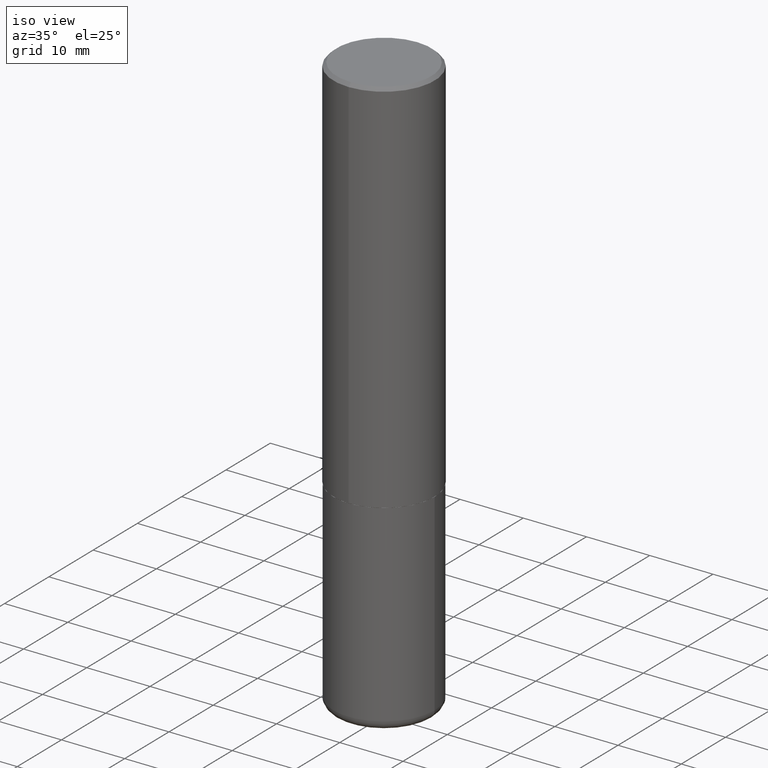
[diagram: clean part render]
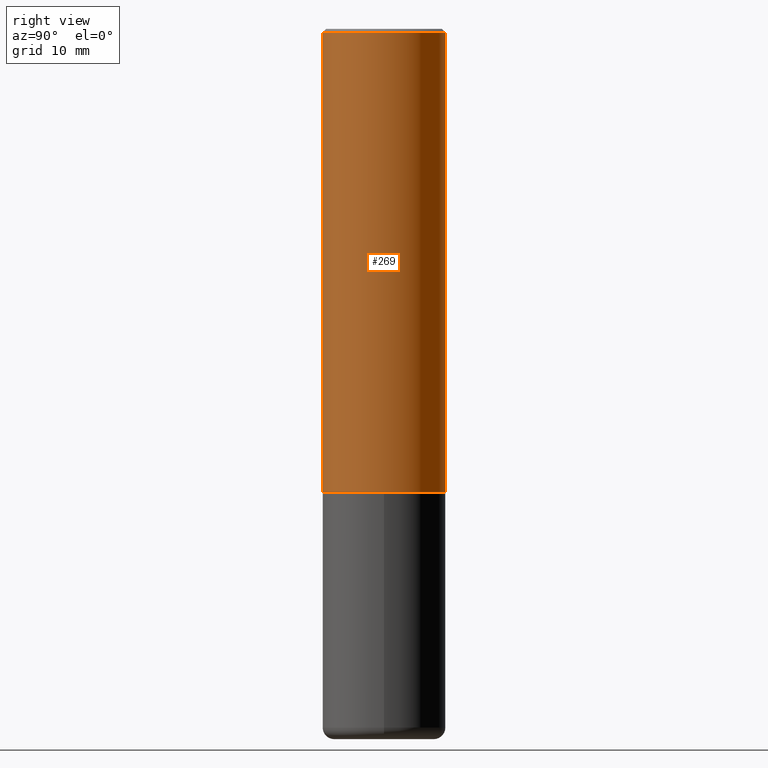
[diagram: tour spotlight — one face highlighted and labeled with its STEP entity id]
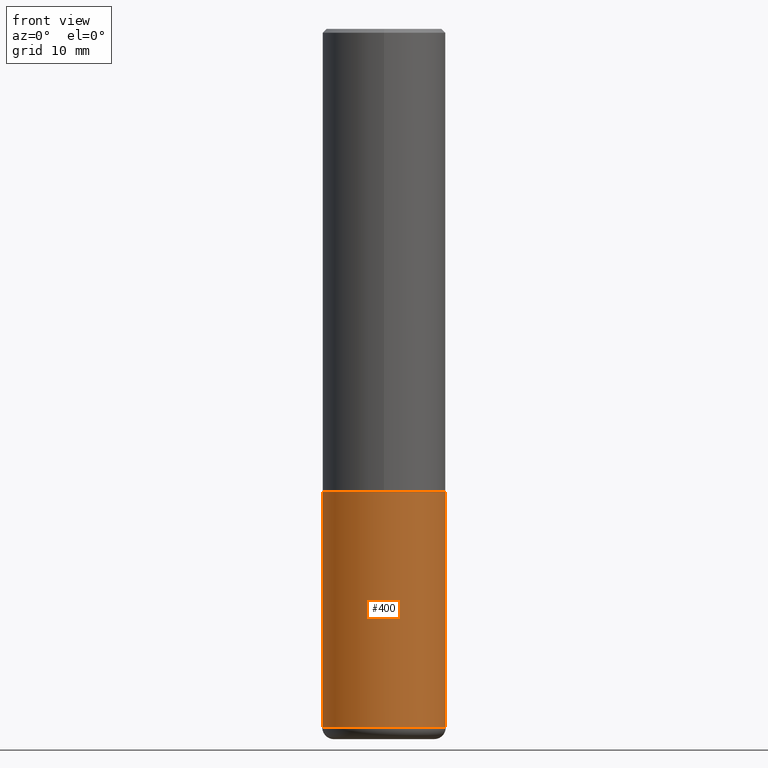
[diagram: tour spotlight — one face highlighted and labeled with its STEP entity id]
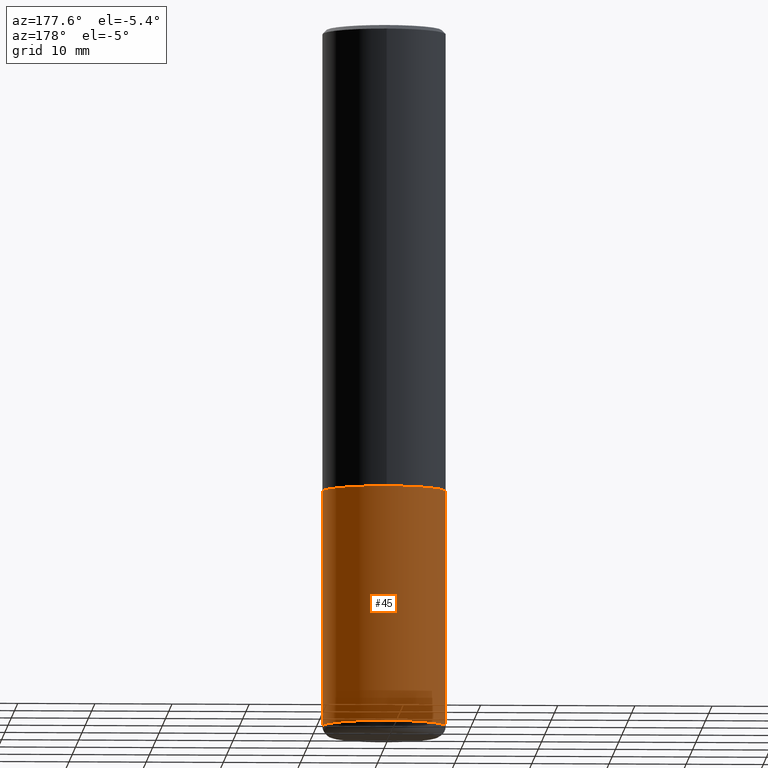
[diagram: tour spotlight — one face highlighted and labeled with its STEP entity id]
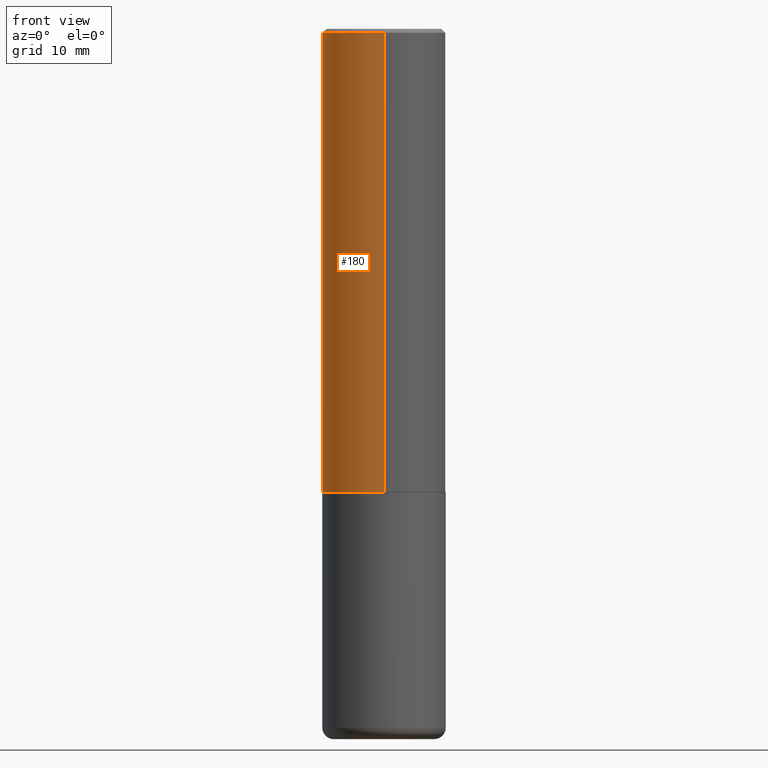
[diagram: tour spotlight — one face highlighted and labeled with its STEP entity id]
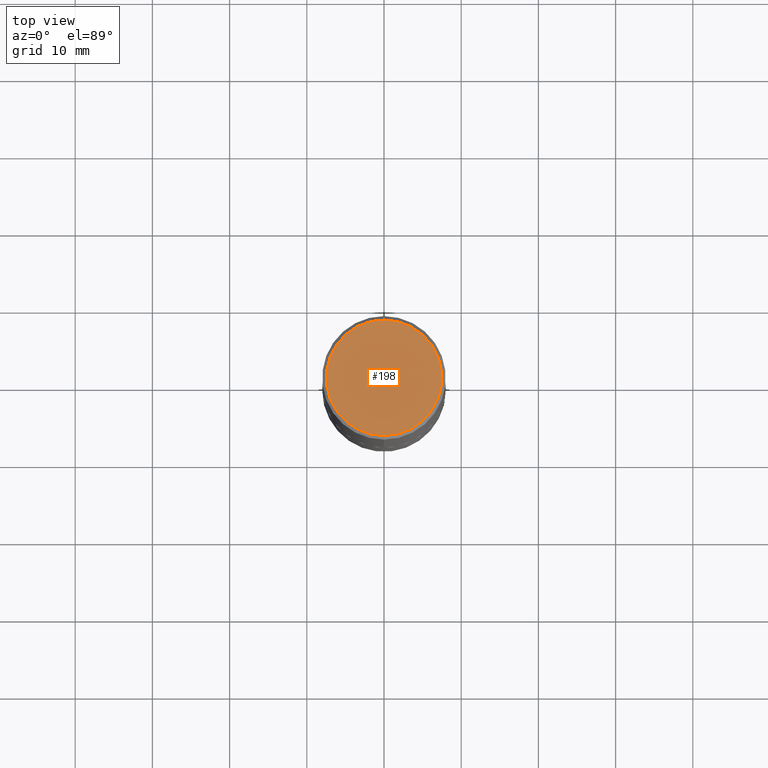
[diagram: tour spotlight — one face highlighted and labeled with its STEP entity id]
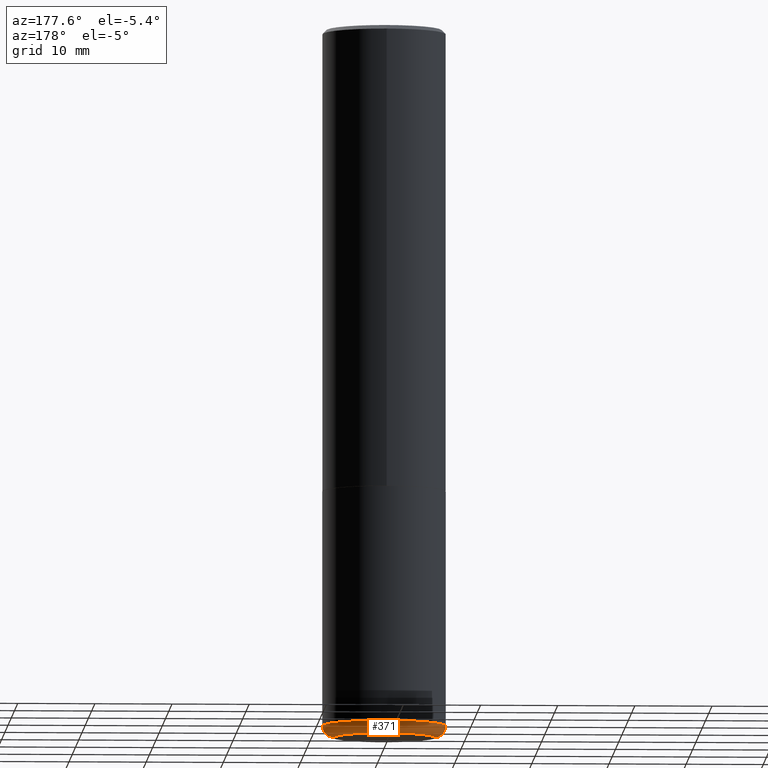
[diagram: tour spotlight — one face highlighted and labeled with its STEP entity id]
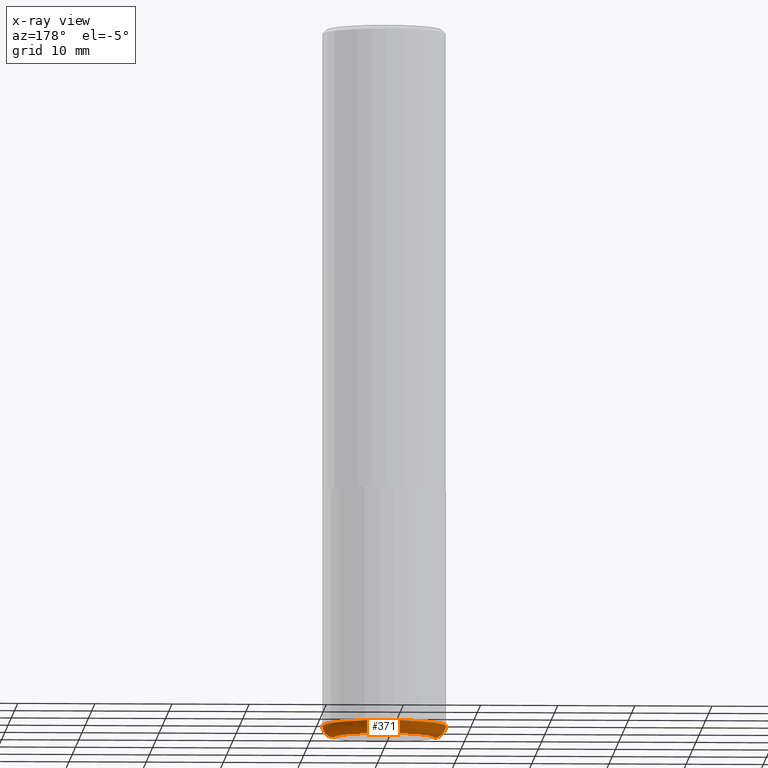
[diagram: x-ray of the same camera — body ghosted, this tour face saturated]
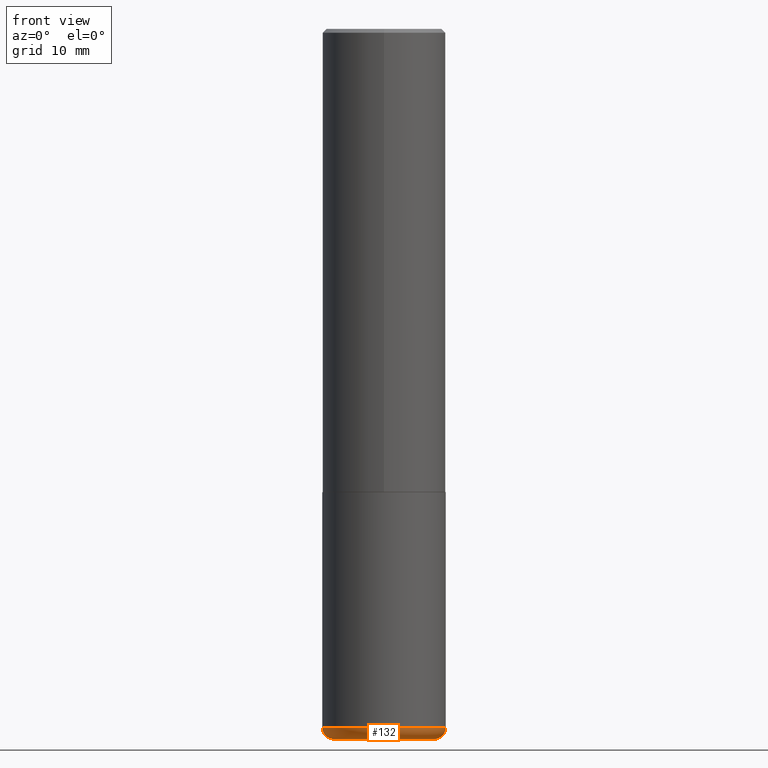
[diagram: tour spotlight — one face highlighted and labeled with its STEP entity id]
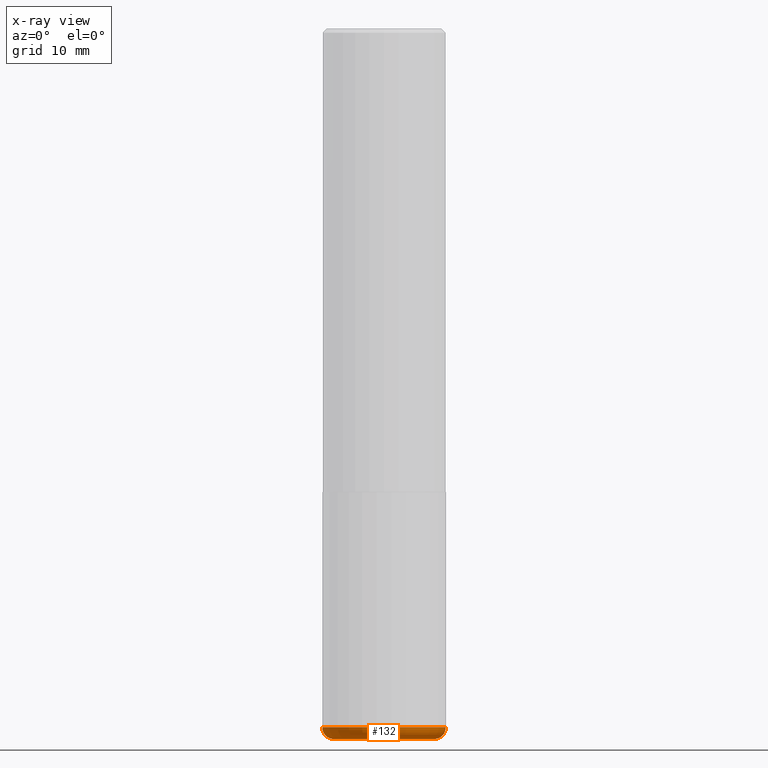
[diagram: x-ray of the same camera — body ghosted, this tour face saturated]
A machine part: a face-by-face anatomy tour. The part has 14 B-rep faces; the first image is the clean iso view, then the 7 largest visible faces are spotlighted one at a time (largest first), each with its STEP entity span.

Face 1 — right view, entity #269. In plain terms, the highlighted cylindrical surface (partial cylindrical patch) has radius 7.9997 mm, axis along (-0, 0, 1).
Definition (entity closure, byte-faithful):
#7 = VERTEX_POINT ( 'NONE', #410 ) ;
#24 = LINE ( 'NONE', #258, #54 ) ;
#30 = VERTEX_POINT ( 'NONE', #303 ) ;
#43 = ORIENTED_EDGE ( 'NONE', *, *, #283, .F. ) ;
#54 = VECTOR ( 'NONE', #59, 39.37007874015748143 ) ;
#59 = DIRECTION ( 'NONE',  ( -2.446939916028603526E-29, 3.489374625816928669E-15, 1.000000000000000000 ) ) ;
#66 = CIRCLE ( 'NONE', #157, 0.3149500000000002853 ) ;
#77 = EDGE_CURVE ( 'NONE', #161, #30, #334, .T. ) ;
#84 = CARTESIAN_POINT ( 'NONE',  ( 2.237854346276435985E-15, 0.3149500000000001743, -1.098978538401042082E-15 ) ) ;
#88 = EDGE_CURVE ( 'NONE', #345, #161, #66, .T. ) ;
#106 = CARTESIAN_POINT ( 'NONE',  ( -2.199284095337233467E-15, -0.3149500000000085564, -2.361199999999998411 ) ) ;
#110 = DIRECTION ( 'NONE',  ( -6.982962677686265922E-15, -1.000000000000000000, 3.469564049740290009E-15 ) ) ;
#112 = CIRCLE ( 'NONE', #346, 0.3149500000000000632 ) ;
#134 = EDGE_LOOP ( 'NONE', ( #381, #290, #43, #171 ) ) ;
#157 = AXIS2_PLACEMENT_3D ( 'NONE', #279, #403, #110 ) ;
#161 = VERTEX_POINT ( 'NONE', #207 ) ;
#163 = VECTOR ( 'NONE', #248, 39.37007874015748143 ) ;
#171 = ORIENTED_EDGE ( 'NONE', *, *, #261, .F. ) ;
#192 = DIRECTION ( 'NONE',  ( -2.446939916028603526E-29, 3.489374625816928275E-15, 1.000000000000000000 ) ) ;
#207 = CARTESIAN_POINT ( 'NONE',  ( 2.237854346276465567E-15, 0.3149499999999920141, -2.361200000000000632 ) ) ;
#227 = CARTESIAN_POINT ( 'NONE',  ( 0.000000000000000000, 0.000000000000000000, 0.000000000000000000 ) ) ;
#248 = DIRECTION ( 'NONE',  ( -2.446939916028603526E-29, 3.489374625816928669E-15, 1.000000000000000000 ) ) ;
#258 = CARTESIAN_POINT ( 'NONE',  ( -2.199284095337290265E-15, -0.3149500000000001743, 1.098978538401042082E-15 ) ) ;
#261 = EDGE_CURVE ( 'NONE', #345, #7, #24, .T. ) ;
#269 = ADVANCED_FACE ( 'NONE', ( #343 ), #280, .T. ) ;
#279 = CARTESIAN_POINT ( 'NONE',  ( 5.777714529726738236E-29, -8.239111366478930822E-15, -2.361199999999999743 ) ) ;
#280 = CYLINDRICAL_SURFACE ( 'NONE', #332, 0.3149500000000001743 ) ;
#282 = CARTESIAN_POINT ( 'NONE',  ( 4.893879832057223376E-31, -6.978749251633880462E-17, -0.02000000000000006981 ) ) ;
#283 = EDGE_CURVE ( 'NONE', #7, #30, #112, .T. ) ;
#290 = ORIENTED_EDGE ( 'NONE', *, *, #77, .T. ) ;
#303 = CARTESIAN_POINT ( 'NONE',  ( 2.199284095337290265E-15, 0.3149500000000000077, -0.02000000000000116615 ) ) ;
#332 = AXIS2_PLACEMENT_3D ( 'NONE', #227, #192, #386 ) ;
#334 = LINE ( 'NONE', #84, #163 ) ;
#343 = FACE_OUTER_BOUND ( 'NONE', #134, .T. ) ;
#345 = VERTEX_POINT ( 'NONE', #106 ) ;
#346 = AXIS2_PLACEMENT_3D ( 'NONE', #282, #379, #347 ) ;
#347 = DIRECTION ( 'NONE',  ( -6.982962677686265922E-15, -1.000000000000000000, 3.483117034309590343E-15 ) ) ;
#379 = DIRECTION ( 'NONE',  ( -2.446939916028603526E-29, 3.489374625816928275E-15, 1.000000000000000000 ) ) ;
#381 = ORIENTED_EDGE ( 'NONE', *, *, #88, .T. ) ;
#386 = DIRECTION ( 'NONE',  ( -6.982962677686264344E-15, -1.000000000000000000, 3.489374625816927880E-15 ) ) ;
#403 = DIRECTION ( 'NONE',  ( -2.446939916028603526E-29, 3.489374625816928275E-15, 1.000000000000000000 ) ) ;
#410 = CARTESIAN_POINT ( 'NONE',  ( -2.160713844398143757E-15, -0.3149500000000001743, -0.01999999999999896999 ) ) ;

Face 2 — front view, entity #400. In plain terms, the highlighted cylindrical surface (partial cylindrical patch) has radius 7.9997 mm, axis along (-0, 0, 1).
Definition (entity closure, byte-faithful):
#9 = AXIS2_PLACEMENT_3D ( 'NONE', #99, #391, #240 ) ;
#11 = ORIENTED_EDGE ( 'NONE', *, *, #148, .T. ) ;
#13 = VERTEX_POINT ( 'NONE', #49 ) ;
#49 = CARTESIAN_POINT ( 'NONE',  ( -0.3149500000000000077, -8.105833694113324624E-15, -2.362199999999999633 ) ) ;
#50 = CARTESIAN_POINT ( 'NONE',  ( 0.3149500000000000077, -1.044686131395256792E-14, -2.362199999999999633 ) ) ;
#53 = CARTESIAN_POINT ( 'NONE',  ( 0.3149500000000000077, -2.199284095337289871E-15, 1.535751875536930130E-29 ) ) ;
#67 = ORIENTED_EDGE ( 'NONE', *, *, #186, .T. ) ;
#72 = CIRCLE ( 'NONE', #306, 0.3149500000000000077 ) ;
#87 = DIRECTION ( 'NONE',  ( -2.445468806185136597E-29, 3.491481338843145583E-15, 1.000000000000000000 ) ) ;
#91 = ORIENTED_EDGE ( 'NONE', *, *, #340, .F. ) ;
#98 = VERTEX_POINT ( 'NONE', #50 ) ;
#99 = CARTESIAN_POINT ( 'NONE',  ( 0.000000000000000000, 0.000000000000000000, 0.000000000000000000 ) ) ;
#102 = CARTESIAN_POINT ( 'NONE',  ( 0.3149500000000000077, -1.463908295750153462E-14, -3.562899999999999956 ) ) ;
#103 = LINE ( 'NONE', #137, #129 ) ;
#129 = VECTOR ( 'NONE', #357, 39.37007874015748143 ) ;
#137 = CARTESIAN_POINT ( 'NONE',  ( -0.3149500000000000077, 2.237854346276435590E-15, -1.549218606675782676E-29 ) ) ;
#141 = FACE_OUTER_BOUND ( 'NONE', #363, .T. ) ;
#148 = EDGE_CURVE ( 'NONE', #339, #98, #219, .T. ) ;
#149 = CIRCLE ( 'NONE', #313, 0.3149500000000000077 ) ;
#165 = CYLINDRICAL_SURFACE ( 'NONE', #9, 0.3149500000000000077 ) ;
#186 = EDGE_CURVE ( 'NONE', #318, #339, #72, .T. ) ;
#217 = VECTOR ( 'NONE', #376, 39.37007874015748143 ) ;
#219 = LINE ( 'NONE', #53, #217 ) ;
#220 = DIRECTION ( 'NONE',  ( 1.000000000000000000, -6.982962677686266711E-15, 0.000000000000000000 ) ) ;
#229 = DIRECTION ( 'NONE',  ( 1.000000000000000000, -6.982962677686269866E-15, 0.000000000000000000 ) ) ;
#231 = CARTESIAN_POINT ( 'NONE',  ( 8.712960809557023143E-29, -1.243979886216424317E-14, -3.562899999999999956 ) ) ;
#240 = DIRECTION ( 'NONE',  ( 1.000000000000000000, -6.982962677686266711E-15, 4.876176775795936353E-29 ) ) ;
#250 = CARTESIAN_POINT ( 'NONE',  ( -0.3149500000000000077, -1.020194451588780718E-14, -3.562899999999999956 ) ) ;
#286 = ORIENTED_EDGE ( 'NONE', *, *, #323, .F. ) ;
#306 = AXIS2_PLACEMENT_3D ( 'NONE', #231, #352, #229 ) ;
#311 = CARTESIAN_POINT ( 'NONE',  ( 5.776686413970529753E-29, -8.247577218615278049E-15, -2.362199999999999633 ) ) ;
#313 = AXIS2_PLACEMENT_3D ( 'NONE', #311, #87, #220 ) ;
#318 = VERTEX_POINT ( 'NONE', #250 ) ;
#323 = EDGE_CURVE ( 'NONE', #13, #98, #149, .T. ) ;
#339 = VERTEX_POINT ( 'NONE', #102 ) ;
#340 = EDGE_CURVE ( 'NONE', #318, #13, #103, .T. ) ;
#352 = DIRECTION ( 'NONE',  ( -2.445468806185136597E-29, 3.491481338843145583E-15, 1.000000000000000000 ) ) ;
#357 = DIRECTION ( 'NONE',  ( -2.445468806185136877E-29, 3.491481338843145188E-15, 1.000000000000000000 ) ) ;
#363 = EDGE_LOOP ( 'NONE', ( #91, #67, #11, #286 ) ) ;
#376 = DIRECTION ( 'NONE',  ( -2.445468806185136877E-29, 3.491481338843145188E-15, 1.000000000000000000 ) ) ;
#391 = DIRECTION ( 'NONE',  ( -2.445468806185136597E-29, 3.491481338843145583E-15, 1.000000000000000000 ) ) ;
#400 = ADVANCED_FACE ( 'NONE', ( #141 ), #165, .T. ) ;

Face 3 — auxiliary view, entity #45. In plain terms, the highlighted cylindrical surface (partial cylindrical patch) has radius 7.9997 mm, axis along (-0, 0, 1).
Definition (entity closure, byte-faithful):
#13 = VERTEX_POINT ( 'NONE', #49 ) ;
#21 = CARTESIAN_POINT ( 'NONE',  ( 8.712960809557023143E-29, -1.243979886216424317E-14, -3.562899999999999956 ) ) ;
#34 = EDGE_CURVE ( 'NONE', #339, #318, #143, .T. ) ;
#45 = ADVANCED_FACE ( 'NONE', ( #268 ), #413, .T. ) ;
#47 = CIRCLE ( 'NONE', #338, 0.3149500000000000077 ) ;
#49 = CARTESIAN_POINT ( 'NONE',  ( -0.3149500000000000077, -8.105833694113324624E-15, -2.362199999999999633 ) ) ;
#50 = CARTESIAN_POINT ( 'NONE',  ( 0.3149500000000000077, -1.044686131395256792E-14, -2.362199999999999633 ) ) ;
#53 = CARTESIAN_POINT ( 'NONE',  ( 0.3149500000000000077, -2.199284095337289871E-15, 1.535751875536930130E-29 ) ) ;
#98 = VERTEX_POINT ( 'NONE', #50 ) ;
#100 = AXIS2_PLACEMENT_3D ( 'NONE', #21, #402, #330 ) ;
#102 = CARTESIAN_POINT ( 'NONE',  ( 0.3149500000000000077, -1.463908295750153462E-14, -3.562899999999999956 ) ) ;
#103 = LINE ( 'NONE', #137, #129 ) ;
#119 = DIRECTION ( 'NONE',  ( -2.445468806185136597E-29, 3.491481338843145583E-15, 1.000000000000000000 ) ) ;
#129 = VECTOR ( 'NONE', #357, 39.37007874015748143 ) ;
#137 = CARTESIAN_POINT ( 'NONE',  ( -0.3149500000000000077, 2.237854346276435590E-15, -1.549218606675782676E-29 ) ) ;
#143 = CIRCLE ( 'NONE', #100, 0.3149500000000000077 ) ;
#148 = EDGE_CURVE ( 'NONE', #339, #98, #219, .T. ) ;
#189 = ORIENTED_EDGE ( 'NONE', *, *, #392, .F. ) ;
#217 = VECTOR ( 'NONE', #376, 39.37007874015748143 ) ;
#219 = LINE ( 'NONE', #53, #217 ) ;
#233 = DIRECTION ( 'NONE',  ( -2.445468806185136597E-29, 3.491481338843145583E-15, 1.000000000000000000 ) ) ;
#238 = AXIS2_PLACEMENT_3D ( 'NONE', #243, #119, #375 ) ;
#243 = CARTESIAN_POINT ( 'NONE',  ( 0.000000000000000000, 0.000000000000000000, 0.000000000000000000 ) ) ;
#250 = CARTESIAN_POINT ( 'NONE',  ( -0.3149500000000000077, -1.020194451588780718E-14, -3.562899999999999956 ) ) ;
#255 = ORIENTED_EDGE ( 'NONE', *, *, #148, .F. ) ;
#268 = FACE_OUTER_BOUND ( 'NONE', #316, .T. ) ;
#316 = EDGE_LOOP ( 'NONE', ( #321, #354, #189, #255 ) ) ;
#318 = VERTEX_POINT ( 'NONE', #250 ) ;
#321 = ORIENTED_EDGE ( 'NONE', *, *, #34, .T. ) ;
#330 = DIRECTION ( 'NONE',  ( 1.000000000000000000, -6.982962677686269866E-15, 0.000000000000000000 ) ) ;
#338 = AXIS2_PLACEMENT_3D ( 'NONE', #365, #233, #360 ) ;
#339 = VERTEX_POINT ( 'NONE', #102 ) ;
#340 = EDGE_CURVE ( 'NONE', #318, #13, #103, .T. ) ;
#354 = ORIENTED_EDGE ( 'NONE', *, *, #340, .T. ) ;
#357 = DIRECTION ( 'NONE',  ( -2.445468806185136877E-29, 3.491481338843145188E-15, 1.000000000000000000 ) ) ;
#360 = DIRECTION ( 'NONE',  ( 1.000000000000000000, -6.982962677686266711E-15, 0.000000000000000000 ) ) ;
#365 = CARTESIAN_POINT ( 'NONE',  ( 5.776686413970529753E-29, -8.247577218615278049E-15, -2.362199999999999633 ) ) ;
#375 = DIRECTION ( 'NONE',  ( 1.000000000000000000, -6.982962677686266711E-15, 4.876176775795936353E-29 ) ) ;
#376 = DIRECTION ( 'NONE',  ( -2.445468806185136877E-29, 3.491481338843145188E-15, 1.000000000000000000 ) ) ;
#392 = EDGE_CURVE ( 'NONE', #98, #13, #47, .T. ) ;
#402 = DIRECTION ( 'NONE',  ( -2.445468806185136597E-29, 3.491481338843145583E-15, 1.000000000000000000 ) ) ;
#413 = CYLINDRICAL_SURFACE ( 'NONE', #238, 0.3149500000000000077 ) ;

Face 4 — front view, entity #180. In plain terms, the highlighted cylindrical surface (partial cylindrical patch) has radius 7.9997 mm, axis along (-0, 0, 1).
Definition (entity closure, byte-faithful):
#7 = VERTEX_POINT ( 'NONE', #410 ) ;
#17 = EDGE_CURVE ( 'NONE', #161, #345, #52, .T. ) ;
#20 = AXIS2_PLACEMENT_3D ( 'NONE', #117, #367, #85 ) ;
#24 = LINE ( 'NONE', #258, #54 ) ;
#27 = CARTESIAN_POINT ( 'NONE',  ( 0.000000000000000000, 0.000000000000000000, 0.000000000000000000 ) ) ;
#30 = VERTEX_POINT ( 'NONE', #303 ) ;
#33 = CIRCLE ( 'NONE', #267, 0.3149500000000000632 ) ;
#37 = CARTESIAN_POINT ( 'NONE',  ( 4.893879832057223376E-31, -6.978749251633880462E-17, -0.02000000000000006981 ) ) ;
#52 = CIRCLE ( 'NONE', #20, 0.3149500000000002853 ) ;
#54 = VECTOR ( 'NONE', #59, 39.37007874015748143 ) ;
#59 = DIRECTION ( 'NONE',  ( -2.446939916028603526E-29, 3.489374625816928669E-15, 1.000000000000000000 ) ) ;
#65 = DIRECTION ( 'NONE',  ( -2.446939916028603526E-29, 3.489374625816928275E-15, 1.000000000000000000 ) ) ;
#68 = DIRECTION ( 'NONE',  ( -6.982962677686265922E-15, -1.000000000000000000, 3.483117034309590343E-15 ) ) ;
#77 = EDGE_CURVE ( 'NONE', #161, #30, #334, .T. ) ;
#84 = CARTESIAN_POINT ( 'NONE',  ( 2.237854346276435985E-15, 0.3149500000000001743, -1.098978538401042082E-15 ) ) ;
#85 = DIRECTION ( 'NONE',  ( -6.982962677686265922E-15, -1.000000000000000000, 3.469564049740290009E-15 ) ) ;
#106 = CARTESIAN_POINT ( 'NONE',  ( -2.199284095337233467E-15, -0.3149500000000085564, -2.361199999999998411 ) ) ;
#117 = CARTESIAN_POINT ( 'NONE',  ( 5.777714529726738236E-29, -8.239111366478930822E-15, -2.361199999999999743 ) ) ;
#142 = ORIENTED_EDGE ( 'NONE', *, *, #77, .F. ) ;
#161 = VERTEX_POINT ( 'NONE', #207 ) ;
#163 = VECTOR ( 'NONE', #248, 39.37007874015748143 ) ;
#180 = ADVANCED_FACE ( 'NONE', ( #417 ), #284, .T. ) ;
#188 = DIRECTION ( 'NONE',  ( -6.982962677686264344E-15, -1.000000000000000000, 3.489374625816927880E-15 ) ) ;
#200 = DIRECTION ( 'NONE',  ( -2.446939916028603526E-29, 3.489374625816928275E-15, 1.000000000000000000 ) ) ;
#203 = ORIENTED_EDGE ( 'NONE', *, *, #412, .F. ) ;
#207 = CARTESIAN_POINT ( 'NONE',  ( 2.237854346276465567E-15, 0.3149499999999920141, -2.361200000000000632 ) ) ;
#237 = ORIENTED_EDGE ( 'NONE', *, *, #261, .T. ) ;
#248 = DIRECTION ( 'NONE',  ( -2.446939916028603526E-29, 3.489374625816928669E-15, 1.000000000000000000 ) ) ;
#258 = CARTESIAN_POINT ( 'NONE',  ( -2.199284095337290265E-15, -0.3149500000000001743, 1.098978538401042082E-15 ) ) ;
#261 = EDGE_CURVE ( 'NONE', #345, #7, #24, .T. ) ;
#267 = AXIS2_PLACEMENT_3D ( 'NONE', #37, #200, #68 ) ;
#284 = CYLINDRICAL_SURFACE ( 'NONE', #344, 0.3149500000000001743 ) ;
#303 = CARTESIAN_POINT ( 'NONE',  ( 2.199284095337290265E-15, 0.3149500000000000077, -0.02000000000000116615 ) ) ;
#334 = LINE ( 'NONE', #84, #163 ) ;
#344 = AXIS2_PLACEMENT_3D ( 'NONE', #27, #65, #188 ) ;
#345 = VERTEX_POINT ( 'NONE', #106 ) ;
#351 = EDGE_LOOP ( 'NONE', ( #142, #401, #237, #203 ) ) ;
#367 = DIRECTION ( 'NONE',  ( -2.446939916028603526E-29, 3.489374625816928275E-15, 1.000000000000000000 ) ) ;
#401 = ORIENTED_EDGE ( 'NONE', *, *, #17, .T. ) ;
#410 = CARTESIAN_POINT ( 'NONE',  ( -2.160713844398143757E-15, -0.3149500000000001743, -0.01999999999999896999 ) ) ;
#412 = EDGE_CURVE ( 'NONE', #30, #7, #33, .T. ) ;
#417 = FACE_OUTER_BOUND ( 'NONE', #351, .T. ) ;

Face 5 — top view, entity #198. In plain terms, the highlighted planar face has unit normal (0, -0, -1).
Definition (entity closure, byte-faithful):
#4 = VERTEX_POINT ( 'NONE', #83 ) ;
#57 = CARTESIAN_POINT ( 'NONE',  ( -7.159308785100011389E-46, 1.020928640277417393E-31, 2.925821242362014033E-17 ) ) ;
#63 = EDGE_CURVE ( 'NONE', #265, #4, #331, .T. ) ;
#73 = AXIS2_PLACEMENT_3D ( 'NONE', #57, #260, #359 ) ;
#83 = CARTESIAN_POINT ( 'NONE',  ( -2.092108864420428426E-15, -0.2949500000000000455, 1.058449258308323097E-15 ) ) ;
#121 = PLANE ( 'NONE',  #183 ) ;
#146 = CARTESIAN_POINT ( 'NONE',  ( -7.159308785100011389E-46, 1.020928640277417393E-31, 2.925821242362014033E-17 ) ) ;
#159 = FACE_OUTER_BOUND ( 'NONE', #262, .T. ) ;
#164 = ORIENTED_EDGE ( 'NONE', *, *, #63, .T. ) ;
#183 = AXIS2_PLACEMENT_3D ( 'NONE', #389, #222, #414 ) ;
#198 = ADVANCED_FACE ( 'NONE', ( #159 ), #121, .F. ) ;
#222 = DIRECTION ( 'NONE',  ( 2.446939916028602965E-29, -3.489374625816928669E-15, -1.000000000000000000 ) ) ;
#239 = CIRCLE ( 'NONE', #73, 0.2949500000000000455 ) ;
#254 = CARTESIAN_POINT ( 'NONE',  ( 2.129454468560427362E-15, 0.2949500000000000455, -9.999328334610827920E-16 ) ) ;
#260 = DIRECTION ( 'NONE',  ( -2.446939916028603526E-29, 3.489374625816928275E-15, 1.000000000000000000 ) ) ;
#262 = EDGE_LOOP ( 'NONE', ( #164, #398 ) ) ;
#265 = VERTEX_POINT ( 'NONE', #254 ) ;
#304 = DIRECTION ( 'NONE',  ( -6.982962677686265922E-15, -1.000000000000000000, 3.489374625816927880E-15 ) ) ;
#305 = DIRECTION ( 'NONE',  ( -2.446939916028603526E-29, 3.489374625816928275E-15, 1.000000000000000000 ) ) ;
#312 = AXIS2_PLACEMENT_3D ( 'NONE', #146, #305, #304 ) ;
#331 = CIRCLE ( 'NONE', #312, 0.2949500000000000455 ) ;
#335 = EDGE_CURVE ( 'NONE', #4, #265, #239, .T. ) ;
#359 = DIRECTION ( 'NONE',  ( -6.982962677686265922E-15, -1.000000000000000000, 3.489374625816927880E-15 ) ) ;
#389 = CARTESIAN_POINT ( 'NONE',  ( 2.059624841783564458E-15, 0.2949500000000000455, -1.014561939672893016E-15 ) ) ;
#398 = ORIENTED_EDGE ( 'NONE', *, *, #335, .T. ) ;
#414 = DIRECTION ( 'NONE',  ( 6.982962677686265922E-15, 1.000000000000000000, -3.489374625816928669E-15 ) ) ;

Face 6 — auxiliary view, entity #371. An x-ray twin of the same camera follows (body ghosted, this face saturated) — the face is partly hidden behind the body. In plain terms, the highlighted toroidal blend (fillet) surface has major radius 6.4986 mm and minor (blend) radius 1.5011 mm.
Definition (entity closure, byte-faithful):
#2 = DIRECTION ( 'NONE',  ( -2.445468806185136597E-29, 3.491481338843145583E-15, 1.000000000000000000 ) ) ;
#8 = DIRECTION ( 'NONE',  ( -2.445468806185136597E-29, 3.491481338843145583E-15, 1.000000000000000000 ) ) ;
#21 = CARTESIAN_POINT ( 'NONE',  ( 8.712960809557023143E-29, -1.243979886216424317E-14, -3.562899999999999956 ) ) ;
#25 = CARTESIAN_POINT ( 'NONE',  ( 0.2558500000000000218, -1.422638986325027382E-14, -3.562899999999999956 ) ) ;
#32 = ORIENTED_EDGE ( 'NONE', *, *, #327, .F. ) ;
#34 = EDGE_CURVE ( 'NONE', #339, #318, #143, .T. ) ;
#35 = DIRECTION ( 'NONE',  ( 1.000000000000000000, -6.982962677686269866E-15, 4.883557194083113462E-29 ) ) ;
#36 = FACE_OUTER_BOUND ( 'NONE', #366, .T. ) ;
#60 = DIRECTION ( 'NONE',  ( 7.105427357601001859E-15, 1.000000000000000000, -3.491481338843145583E-15 ) ) ;
#69 = CARTESIAN_POINT ( 'NONE',  ( 8.712960809557023143E-29, -1.243979886216424317E-14, -3.562899999999999956 ) ) ;
#89 = CARTESIAN_POINT ( 'NONE',  ( -0.2558500000000000218, -1.062187527272202748E-14, -3.562899999999999956 ) ) ;
#97 = CARTESIAN_POINT ( 'NONE',  ( 0.2558500000000000218, -1.443273641037590422E-14, -3.621999999999999886 ) ) ;
#100 = AXIS2_PLACEMENT_3D ( 'NONE', #21, #402, #330 ) ;
#102 = CARTESIAN_POINT ( 'NONE',  ( 0.3149500000000000077, -1.463908295750153462E-14, -3.562899999999999956 ) ) ;
#105 = CIRCLE ( 'NONE', #169, 0.05909999999999999282 ) ;
#127 = DIRECTION ( 'NONE',  ( 1.000000000000000000, -6.982962677686263555E-15, 0.000000000000000000 ) ) ;
#128 = CIRCLE ( 'NONE', #361, 0.05909999999999999282 ) ;
#133 = CARTESIAN_POINT ( 'NONE',  ( 8.857488016002564476E-29, -1.264614540928987199E-14, -3.621999999999999886 ) ) ;
#143 = CIRCLE ( 'NONE', #100, 0.3149500000000000077 ) ;
#162 = DIRECTION ( 'NONE',  ( -6.982962677686266711E-15, -1.000000000000000000, 3.491481338843145583E-15 ) ) ;
#169 = AXIS2_PLACEMENT_3D ( 'NONE', #25, #162, #341 ) ;
#193 = EDGE_CURVE ( 'NONE', #383, #318, #128, .T. ) ;
#196 = ORIENTED_EDGE ( 'NONE', *, *, #34, .F. ) ;
#241 = VERTEX_POINT ( 'NONE', #97 ) ;
#250 = CARTESIAN_POINT ( 'NONE',  ( -0.3149500000000000077, -1.020194451588780718E-14, -3.562899999999999956 ) ) ;
#288 = AXIS2_PLACEMENT_3D ( 'NONE', #133, #2, #127 ) ;
#289 = DIRECTION ( 'NONE',  ( -1.000000000000000000, 7.105427357600993181E-15, 0.000000000000000000 ) ) ;
#293 = EDGE_CURVE ( 'NONE', #241, #383, #408, .T. ) ;
#295 = ORIENTED_EDGE ( 'NONE', *, *, #293, .T. ) ;
#318 = VERTEX_POINT ( 'NONE', #250 ) ;
#327 = EDGE_CURVE ( 'NONE', #241, #339, #105, .T. ) ;
#330 = DIRECTION ( 'NONE',  ( 1.000000000000000000, -6.982962677686269866E-15, 0.000000000000000000 ) ) ;
#339 = VERTEX_POINT ( 'NONE', #102 ) ;
#341 = DIRECTION ( 'NONE',  ( 1.000000000000000000, -6.982962677686262766E-15, 0.000000000000000000 ) ) ;
#348 = ORIENTED_EDGE ( 'NONE', *, *, #193, .T. ) ;
#361 = AXIS2_PLACEMENT_3D ( 'NONE', #89, #60, #289 ) ;
#366 = EDGE_LOOP ( 'NONE', ( #295, #348, #196, #32 ) ) ;
#371 = ADVANCED_FACE ( 'NONE', ( #36 ), #399, .T. ) ;
#383 = VERTEX_POINT ( 'NONE', #394 ) ;
#394 = CARTESIAN_POINT ( 'NONE',  ( -0.2558500000000000218, -1.051508316786773174E-14, -3.621999999999999886 ) ) ;
#399 = TOROIDAL_SURFACE ( 'NONE', #416, 0.2558500000000000218, 0.05909999999999995812 ) ;
#402 = DIRECTION ( 'NONE',  ( -2.445468806185136597E-29, 3.491481338843145583E-15, 1.000000000000000000 ) ) ;
#408 = CIRCLE ( 'NONE', #288, 0.2558500000000000218 ) ;
#416 = AXIS2_PLACEMENT_3D ( 'NONE', #69, #8, #35 ) ;

Face 7 — front view, entity #132. An x-ray twin of the same camera follows (body ghosted, this face saturated) — the face is partly hidden behind the body. In plain terms, the highlighted toroidal blend (fillet) surface has major radius 6.4986 mm and minor (blend) radius 1.5011 mm.
Definition (entity closure, byte-faithful):
#3 = AXIS2_PLACEMENT_3D ( 'NONE', #187, #211, #182 ) ;
#25 = CARTESIAN_POINT ( 'NONE',  ( 0.2558500000000000218, -1.422638986325027382E-14, -3.562899999999999956 ) ) ;
#55 = EDGE_CURVE ( 'NONE', #383, #241, #355, .T. ) ;
#58 = ORIENTED_EDGE ( 'NONE', *, *, #186, .F. ) ;
#60 = DIRECTION ( 'NONE',  ( 7.105427357601001859E-15, 1.000000000000000000, -3.491481338843145583E-15 ) ) ;
#72 = CIRCLE ( 'NONE', #306, 0.3149500000000000077 ) ;
#78 = FACE_OUTER_BOUND ( 'NONE', #326, .T. ) ;
#89 = CARTESIAN_POINT ( 'NONE',  ( -0.2558500000000000218, -1.062187527272202748E-14, -3.562899999999999956 ) ) ;
#94 = ORIENTED_EDGE ( 'NONE', *, *, #55, .T. ) ;
#97 = CARTESIAN_POINT ( 'NONE',  ( 0.2558500000000000218, -1.443273641037590422E-14, -3.621999999999999886 ) ) ;
#102 = CARTESIAN_POINT ( 'NONE',  ( 0.3149500000000000077, -1.463908295750153462E-14, -3.562899999999999956 ) ) ;
#105 = CIRCLE ( 'NONE', #169, 0.05909999999999999282 ) ;
#109 = DIRECTION ( 'NONE',  ( -2.445468806185136597E-29, 3.491481338843145583E-15, 1.000000000000000000 ) ) ;
#128 = CIRCLE ( 'NONE', #361, 0.05909999999999999282 ) ;
#132 = ADVANCED_FACE ( 'NONE', ( #78 ), #175, .T. ) ;
#162 = DIRECTION ( 'NONE',  ( -6.982962677686266711E-15, -1.000000000000000000, 3.491481338843145583E-15 ) ) ;
#169 = AXIS2_PLACEMENT_3D ( 'NONE', #25, #162, #341 ) ;
#175 = TOROIDAL_SURFACE ( 'NONE', #415, 0.2558500000000000218, 0.05909999999999995812 ) ;
#182 = DIRECTION ( 'NONE',  ( 1.000000000000000000, -6.982962677686263555E-15, 0.000000000000000000 ) ) ;
#186 = EDGE_CURVE ( 'NONE', #318, #339, #72, .T. ) ;
#187 = CARTESIAN_POINT ( 'NONE',  ( 8.857488016002564476E-29, -1.264614540928987199E-14, -3.621999999999999886 ) ) ;
#193 = EDGE_CURVE ( 'NONE', #383, #318, #128, .T. ) ;
#197 = ORIENTED_EDGE ( 'NONE', *, *, #327, .T. ) ;
#211 = DIRECTION ( 'NONE',  ( -2.445468806185136597E-29, 3.491481338843145583E-15, 1.000000000000000000 ) ) ;
#215 = CARTESIAN_POINT ( 'NONE',  ( 8.712960809557023143E-29, -1.243979886216424317E-14, -3.562899999999999956 ) ) ;
#221 = ORIENTED_EDGE ( 'NONE', *, *, #193, .F. ) ;
#229 = DIRECTION ( 'NONE',  ( 1.000000000000000000, -6.982962677686269866E-15, 0.000000000000000000 ) ) ;
#231 = CARTESIAN_POINT ( 'NONE',  ( 8.712960809557023143E-29, -1.243979886216424317E-14, -3.562899999999999956 ) ) ;
#241 = VERTEX_POINT ( 'NONE', #97 ) ;
#250 = CARTESIAN_POINT ( 'NONE',  ( -0.3149500000000000077, -1.020194451588780718E-14, -3.562899999999999956 ) ) ;
#289 = DIRECTION ( 'NONE',  ( -1.000000000000000000, 7.105427357600993181E-15, 0.000000000000000000 ) ) ;
#306 = AXIS2_PLACEMENT_3D ( 'NONE', #231, #352, #229 ) ;
#318 = VERTEX_POINT ( 'NONE', #250 ) ;
#326 = EDGE_LOOP ( 'NONE', ( #221, #94, #197, #58 ) ) ;
#327 = EDGE_CURVE ( 'NONE', #241, #339, #105, .T. ) ;
#337 = DIRECTION ( 'NONE',  ( 1.000000000000000000, -6.982962677686269866E-15, 4.883557194083113462E-29 ) ) ;
#339 = VERTEX_POINT ( 'NONE', #102 ) ;
#341 = DIRECTION ( 'NONE',  ( 1.000000000000000000, -6.982962677686262766E-15, 0.000000000000000000 ) ) ;
#352 = DIRECTION ( 'NONE',  ( -2.445468806185136597E-29, 3.491481338843145583E-15, 1.000000000000000000 ) ) ;
#355 = CIRCLE ( 'NONE', #3, 0.2558500000000000218 ) ;
#361 = AXIS2_PLACEMENT_3D ( 'NONE', #89, #60, #289 ) ;
#383 = VERTEX_POINT ( 'NONE', #394 ) ;
#394 = CARTESIAN_POINT ( 'NONE',  ( -0.2558500000000000218, -1.051508316786773174E-14, -3.621999999999999886 ) ) ;
#415 = AXIS2_PLACEMENT_3D ( 'NONE', #215, #109, #337 ) ;